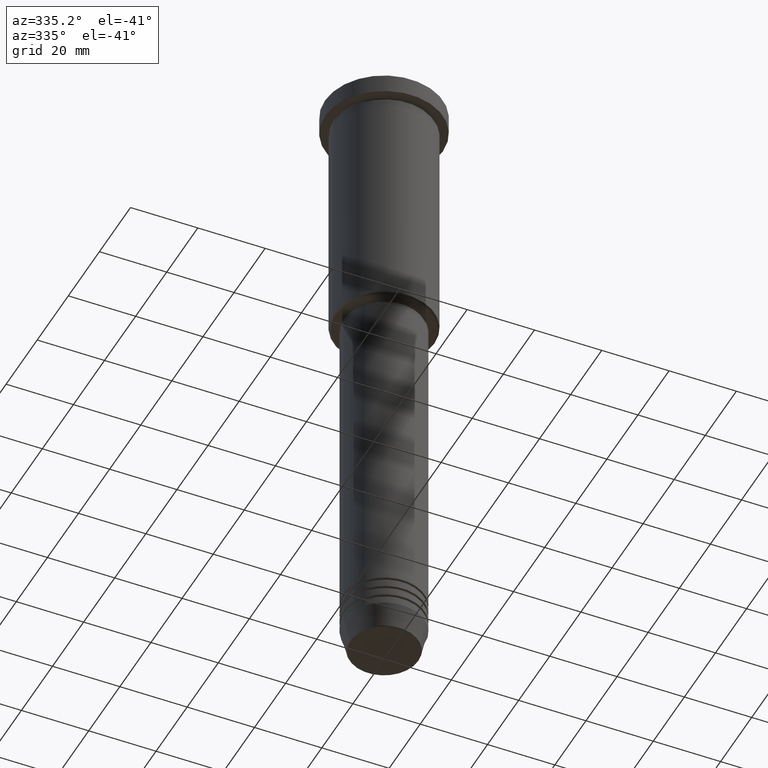
[diagram: clean part render]
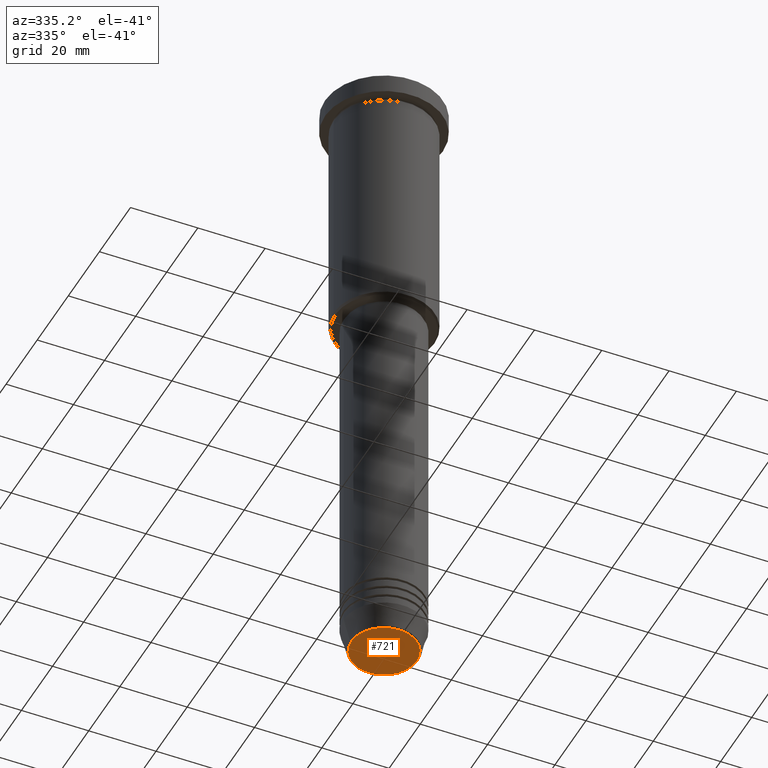
[diagram: same view with one face highlighted and labeled with its STEP entity id]
A machine part, auxiliary view. The second image highlights one B-rep face of the part: STEP entity #721.
In plain terms, the highlighted planar face has unit normal (0, -0, 1).
Its self-contained STEP definition (entity closure, byte-faithful):
#186 = FACE_OUTER_BOUND ( 'NONE', #862, .T. ) ;
#208 = ORIENTED_EDGE ( 'NONE', *, *, #556, .T. ) ;
#253 = PLANE ( 'NONE',  #1023 ) ;
#291 = CARTESIAN_POINT ( 'NONE',  ( -9.740692158992667160, 1.222463696683475393E-15, -191.0000000000000000 ) ) ;
#342 = CARTESIAN_POINT ( 'NONE',  ( 9.740692158992667160, 0.000000000000000000, -191.0000000000000000 ) ) ;
#348 = DIRECTION ( 'NONE',  ( 0.000000000000000000, -0.000000000000000000, 1.000000000000000000 ) ) ;
#475 = AXIS2_PLACEMENT_3D ( 'NONE', #955, #765, #771 ) ;
#490 = DIRECTION ( 'NONE',  ( 1.000000000000000000, 0.000000000000000000, 0.000000000000000000 ) ) ;
#510 = EDGE_CURVE ( 'NONE', #899, #1069, #573, .T. ) ;
#514 = AXIS2_PLACEMENT_3D ( 'NONE', #940, #944, #490 ) ;
#556 = EDGE_CURVE ( 'NONE', #1069, #899, #811, .T. ) ;
#573 = CIRCLE ( 'NONE', #475, 9.740692158992667160 ) ;
#721 = ADVANCED_FACE ( 'NONE', ( #186 ), #253, .F. ) ;
#765 = DIRECTION ( 'NONE',  ( 0.000000000000000000, 0.000000000000000000, -1.000000000000000000 ) ) ;
#771 = DIRECTION ( 'NONE',  ( 1.000000000000000000, 0.000000000000000000, 0.000000000000000000 ) ) ;
#811 = CIRCLE ( 'NONE', #514, 9.740692158992667160 ) ;
#862 = EDGE_LOOP ( 'NONE', ( #208, #894 ) ) ;
#894 = ORIENTED_EDGE ( 'NONE', *, *, #510, .T. ) ;
#899 = VERTEX_POINT ( 'NONE', #291 ) ;
#900 = DIRECTION ( 'NONE',  ( 1.000000000000000000, 0.000000000000000000, 0.000000000000000000 ) ) ;
#940 = CARTESIAN_POINT ( 'NONE',  ( 0.000000000000000000, 0.000000000000000000, -191.0000000000000000 ) ) ;
#944 = DIRECTION ( 'NONE',  ( 0.000000000000000000, 0.000000000000000000, -1.000000000000000000 ) ) ;
#955 = CARTESIAN_POINT ( 'NONE',  ( 0.000000000000000000, 0.000000000000000000, -191.0000000000000000 ) ) ;
#1023 = AXIS2_PLACEMENT_3D ( 'NONE', #1176, #348, #900 ) ;
#1069 = VERTEX_POINT ( 'NONE', #342 ) ;
#1176 = CARTESIAN_POINT ( 'NONE',  ( 0.000000000000000000, 0.000000000000000000, -191.0000000000000000 ) ) ;